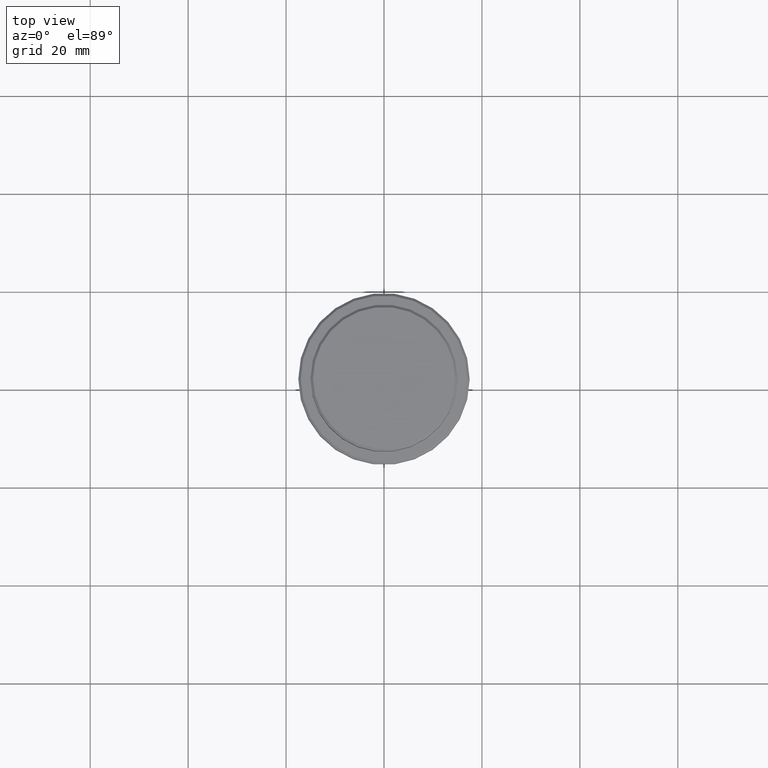
[diagram: clean part render]
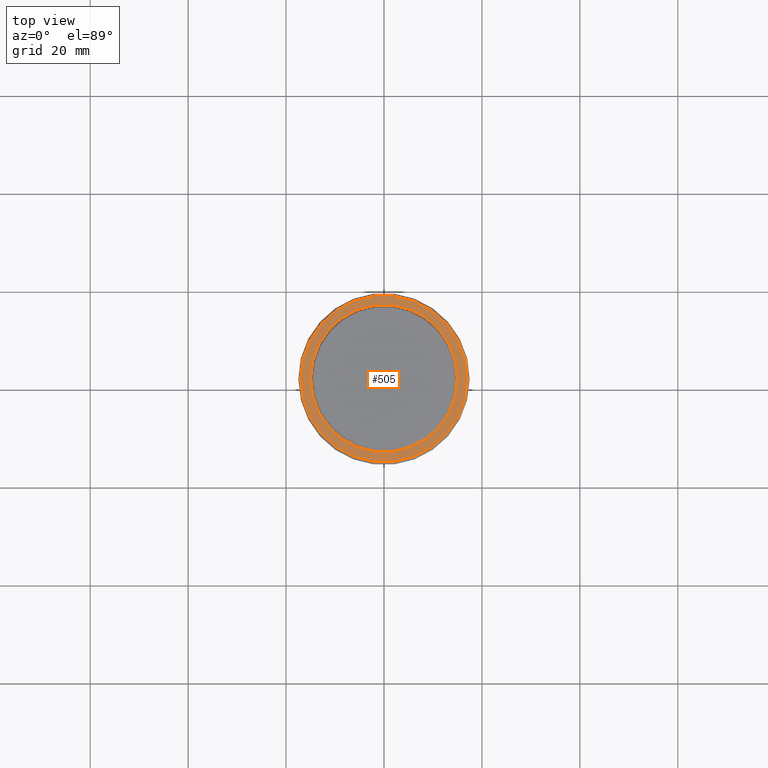
[diagram: same view with one face highlighted and labeled with its STEP entity id]
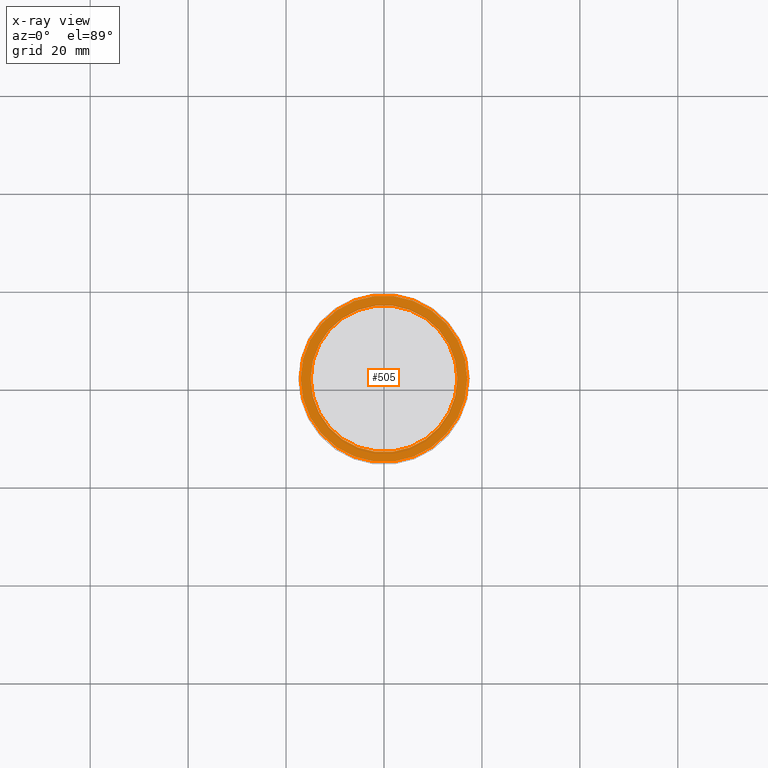
[diagram: x-ray of the same camera — body ghosted, the highlighted face saturated]
A machine part, top view. The second image highlights one B-rep face of the part: STEP entity #505.
The next image is the same camera in x-ray: the body ghosted, the highlighted face saturated — about 0% of this face is hidden behind the body in this view.
In plain terms, the highlighted planar face has unit normal (0, -0, 1).
Its self-contained STEP definition (entity closure, byte-faithful):
#53 = DIRECTION ( 'NONE',  ( 1.000000000000000000, 0.000000000000000000, 0.000000000000000000 ) ) ;
#67 = VERTEX_POINT ( 'NONE', #222 ) ;
#116 = CARTESIAN_POINT ( 'NONE',  ( -17.00000000000000000, 0.000000000000000000, -9.000000000000000000 ) ) ;
#138 = ORIENTED_EDGE ( 'NONE', *, *, #339, .T. ) ;
#222 = CARTESIAN_POINT ( 'NONE',  ( -14.99999999999999289, 1.836970198721028800E-15, -9.000000000000000000 ) ) ;
#263 = AXIS2_PLACEMENT_3D ( 'NONE', #733, #1279, #829 ) ;
#274 = VERTEX_POINT ( 'NONE', #1133 ) ;
#305 = CARTESIAN_POINT ( 'NONE',  ( 0.000000000000000000, 0.000000000000000000, -9.000000000000000000 ) ) ;
#339 = EDGE_CURVE ( 'NONE', #67, #274, #536, .T. ) ;
#390 = DIRECTION ( 'NONE',  ( -0.000000000000000000, -0.000000000000000000, 1.000000000000000000 ) ) ;
#420 = DIRECTION ( 'NONE',  ( 1.000000000000000000, 0.000000000000000000, 0.000000000000000000 ) ) ;
#505 = ADVANCED_FACE ( 'NONE', ( #630, #713 ), #1278, .T. ) ;
#519 = CIRCLE ( 'NONE', #993, 17.00000000000000000 ) ;
#536 = CIRCLE ( 'NONE', #1050, 14.99999999999999289 ) ;
#556 = CIRCLE ( 'NONE', #263, 17.00000000000000000 ) ;
#602 = CIRCLE ( 'NONE', #1397, 14.99999999999999289 ) ;
#623 = CARTESIAN_POINT ( 'NONE',  ( 0.000000000000000000, 0.000000000000000000, -9.000000000000000000 ) ) ;
#630 = FACE_OUTER_BOUND ( 'NONE', #1158, .T. ) ;
#646 = DIRECTION ( 'NONE',  ( 1.000000000000000000, 0.000000000000000000, 0.000000000000000000 ) ) ;
#673 = DIRECTION ( 'NONE',  ( 0.000000000000000000, 0.000000000000000000, -1.000000000000000000 ) ) ;
#677 = ORIENTED_EDGE ( 'NONE', *, *, #930, .T. ) ;
#713 = FACE_BOUND ( 'NONE', #989, .T. ) ;
#733 = CARTESIAN_POINT ( 'NONE',  ( 0.000000000000000000, 0.000000000000000000, -9.000000000000000000 ) ) ;
#753 = CARTESIAN_POINT ( 'NONE',  ( 0.000000000000000000, 0.000000000000000000, -9.000000000000000000 ) ) ;
#814 = AXIS2_PLACEMENT_3D ( 'NONE', #1049, #1144, #53 ) ;
#829 = DIRECTION ( 'NONE',  ( 1.000000000000000000, 0.000000000000000000, 0.000000000000000000 ) ) ;
#868 = VERTEX_POINT ( 'NONE', #1295 ) ;
#930 = EDGE_CURVE ( 'NONE', #1169, #868, #519, .T. ) ;
#989 = EDGE_LOOP ( 'NONE', ( #992, #138 ) ) ;
#992 = ORIENTED_EDGE ( 'NONE', *, *, #1298, .T. ) ;
#993 = AXIS2_PLACEMENT_3D ( 'NONE', #305, #390, #646 ) ;
#1049 = CARTESIAN_POINT ( 'NONE',  ( 0.000000000000000000, 14.49999999999999467, -9.000000000000000000 ) ) ;
#1050 = AXIS2_PLACEMENT_3D ( 'NONE', #753, #673, #420 ) ;
#1133 = CARTESIAN_POINT ( 'NONE',  ( 14.99999999999999289, 0.000000000000000000, -9.000000000000000000 ) ) ;
#1144 = DIRECTION ( 'NONE',  ( 0.000000000000000000, -0.000000000000000000, 1.000000000000000000 ) ) ;
#1158 = EDGE_LOOP ( 'NONE', ( #677, #1191 ) ) ;
#1169 = VERTEX_POINT ( 'NONE', #116 ) ;
#1191 = ORIENTED_EDGE ( 'NONE', *, *, #1395, .T. ) ;
#1278 = PLANE ( 'NONE',  #814 ) ;
#1279 = DIRECTION ( 'NONE',  ( -0.000000000000000000, -0.000000000000000000, 1.000000000000000000 ) ) ;
#1295 = CARTESIAN_POINT ( 'NONE',  ( 17.00000000000000000, 2.112515728529184067E-15, -9.000000000000000000 ) ) ;
#1298 = EDGE_CURVE ( 'NONE', #274, #67, #602, .T. ) ;
#1388 = DIRECTION ( 'NONE',  ( 0.000000000000000000, 0.000000000000000000, -1.000000000000000000 ) ) ;
#1391 = DIRECTION ( 'NONE',  ( 1.000000000000000000, 0.000000000000000000, 0.000000000000000000 ) ) ;
#1395 = EDGE_CURVE ( 'NONE', #868, #1169, #556, .T. ) ;
#1397 = AXIS2_PLACEMENT_3D ( 'NONE', #623, #1388, #1391 ) ;